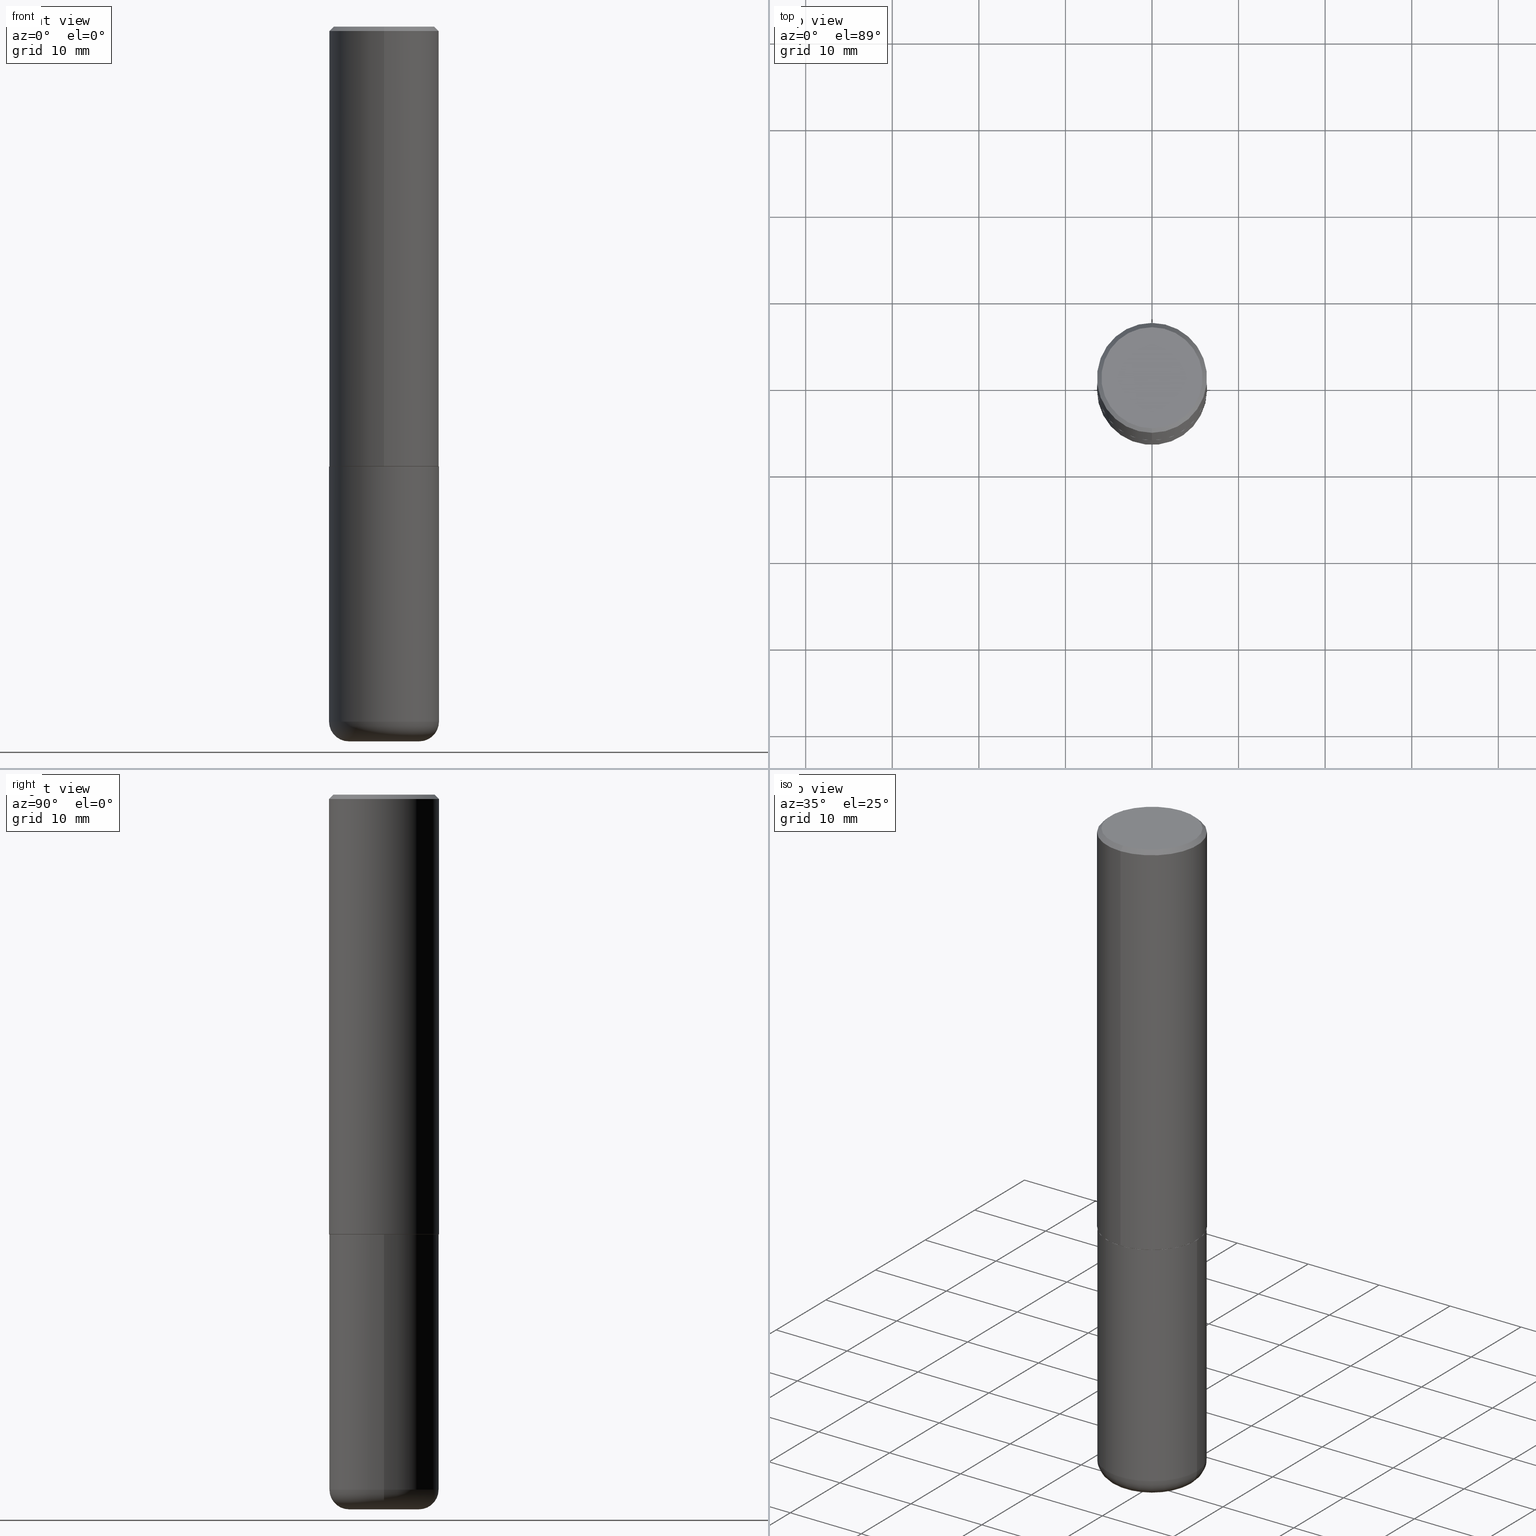
[diagram: canonical four-view strip — front | top / right | iso, engineering-drawing reading convention]
A machine part, canonical four-view strip (front | top / right | iso — engineering-drawing reading convention). The complete STEP part file that produces these views, byte-faithful:
ISO-10303-21;
HEADER;
FILE_DESCRIPTION (( 'STEP AP203' ),
    '1' );
FILE_NAME ('36613.STEP',
    '2024-03-01T16:59:22',
    ( '' ),
    ( '' ),
    'SwSTEP 2.0',
    'SolidWorks 2023',
    '' );
FILE_SCHEMA (( 'CONFIG_CONTROL_DESIGN' ));
ENDSEC;

DATA;
#1 = DIRECTION ( 'NONE',  ( -2.443621766204130648E-29, 3.494126405222933371E-15, 1.000000000000000000 ) ) ;
#2 = DIRECTION ( 'NONE',  ( 1.000000000000000000, -6.982962677686265133E-15, 4.883557194083112340E-29 ) ) ;
#3 = DIRECTION ( 'NONE',  ( -2.443621766204130648E-29, 3.494126405222933371E-15, 1.000000000000000000 ) ) ;
#4 = DIRECTION ( 'NONE',  ( 5.024295867788490741E-15, 0.7071067811866103003, 0.7071067811864847341 ) ) ;
#5 = CARTESIAN_POINT ( 'NONE',  ( -1.738757706743831360E-15, -0.2490000000000069935, -1.999999999999999112 ) ) ;
#6 = ADVANCED_FACE ( 'NONE', ( #378 ), #252, .F. ) ;
#7 = DIRECTION ( 'NONE',  ( 0.000000000000000000, 0.000000000000000000, 1.000000000000000000 ) ) ;
#8 = DIRECTION ( 'NONE',  ( 2.443621766204130368E-29, -3.494126405222933371E-15, -1.000000000000000000 ) ) ;
#9 = DIRECTION ( 'NONE',  ( -6.982962677686266711E-15, -1.000000000000000000, 3.278217592397113101E-15 ) ) ;
#10 = ORIENTED_EDGE ( 'NONE', *, *, #372, .T. ) ;
#11 = CARTESIAN_POINT ( 'NONE',  ( 4.887243532408272857E-31, -6.988252810445882815E-17, -0.02000000000000004552 ) ) ;
#12 = ORIENTED_EDGE ( 'NONE', *, *, #34, .T. ) ;
#13 = ADVANCED_FACE ( 'NONE', ( #343 ), #280, .T. ) ;
#14 = ORIENTED_EDGE ( 'NONE', *, *, #205, .T. ) ;
#15 = CIRCLE ( 'NONE', #310, 0.2500000000000000555 ) ;
#16 = ORGANIZATION ( 'UNSPECIFIED', 'UNSPECIFIED', '' ) ;
#17 = VERTEX_POINT ( 'NONE', #288 ) ;
#18 = ADVANCED_FACE ( 'NONE', ( #347 ), #154, .F. ) ;
#19 = COORDINATED_UNIVERSAL_TIME_OFFSET ( 5, 0, .BEHIND. ) ;
#20 = ORIENTED_EDGE ( 'NONE', *, *, #127, .F. ) ;
#21 = VERTEX_POINT ( 'NONE', #311 ) ;
#22 = CONICAL_SURFACE ( 'NONE', #145, 0.2500000000000000555, 0.7853981633974468357 ) ;
#23 = LOCAL_TIME ( 11, 59, 22.00000000000000000, #115 ) ;
#24 = DIRECTION ( 'NONE',  ( -6.982962677686265133E-15, -1.000000000000000000, 3.291383124896702687E-15 ) ) ;
#25 = ADVANCED_FACE ( 'NONE', ( #26 ), #155, .T. ) ;
#26 = FACE_OUTER_BOUND ( 'NONE', #208, .T. ) ;
#27 = CARTESIAN_POINT ( 'NONE',  ( 0.1600000000000000033, -1.246458837967002615E-14, -3.249999999999999556 ) ) ;
#28 = EDGE_LOOP ( 'NONE', ( #349, #313, #49, #286 ) ) ;
#29 = ADVANCED_FACE ( 'NONE', ( #32 ), #158, .T. ) ;
#30 = AXIS2_PLACEMENT_3D ( 'NONE', #289, #353, #396 ) ;
#31 = CONICAL_SURFACE ( 'NONE', #263, 0.2500000000000000555, 0.7853981633974468357 ) ;
#32 = FACE_OUTER_BOUND ( 'NONE', #46, .T. ) ;
#33 = CARTESIAN_POINT ( 'NONE',  ( -1.745740669421519346E-15, -0.2500000000000072164, -1.998999999999999000 ) ) ;
#34 = EDGE_CURVE ( 'NONE', #246, #299, #266, .T. ) ;
#35 = DIRECTION ( 'NONE',  ( -2.445468806185136597E-29, 3.491481338843145583E-15, 1.000000000000000000 ) ) ;
#36 = CARTESIAN_POINT ( 'NONE',  ( 4.887243532408272857E-31, -6.988252810445882815E-17, -0.02000000000000004552 ) ) ;
#37 = APPROVAL_STATUS ( 'not_yet_approved' ) ;
#38 = CIRCLE ( 'NONE', #387, 0.08999999999999964972 ) ;
#39 = EDGE_CURVE ( 'NONE', #344, #151, #38, .T. ) ;
#40 = DIRECTION ( 'NONE',  ( 7.105427357601001859E-15, 1.000000000000000000, -3.491481338843145583E-15 ) ) ;
#41 = CARTESIAN_POINT ( 'NONE',  ( 4.887243532408260736E-29, -6.988252810445867531E-15, -2.000000000000000000 ) ) ;
#42 = DIRECTION ( 'NONE',  ( 6.982962677686265133E-15, 1.000000000000000000, -3.500180241882336472E-15 ) ) ;
#43 = DIRECTION ( 'NONE',  ( -4.851104656540956386E-15, -0.7071067811865489050, -0.7071067811865461294 ) ) ;
#44 = DIRECTION ( 'NONE',  ( -2.443621766204130368E-29, 3.494126405222933371E-15, 1.000000000000000000 ) ) ;
#45 = DIRECTION ( 'NONE',  ( -2.443621766204130368E-29, 3.494126405222933371E-15, 1.000000000000000000 ) ) ;
#46 = EDGE_LOOP ( 'NONE', ( #250, #410, #91, #411 ) ) ;
#47 = AXIS2_PLACEMENT_3D ( 'NONE', #361, #194, #196 ) ;
#48 = CARTESIAN_POINT ( 'NONE',  ( 1.675911042644704366E-15, 0.2300000000000000377, -7.987721954438231638E-16 ) ) ;
#49 = ORIENTED_EDGE ( 'NONE', *, *, #265, .T. ) ;
#50 = APPROVAL_DATE_TIME ( #117, #209 ) ;
#51 = APPROVAL_DATE_TIME ( #341, #332 ) ;
#52 = AXIS2_PLACEMENT_3D ( 'NONE', #362, #142, #325 ) ;
#53 = AXIS2_PLACEMENT_3D ( 'NONE', #75, #44, #9 ) ;
#54 = SECURITY_CLASSIFICATION_LEVEL ( 'unclassified' ) ;
#55 = ORIENTED_EDGE ( 'NONE', *, *, #170, .T. ) ;
#56 = ORIENTED_EDGE ( 'NONE', *, *, #203, .F. ) ;
#57 = CC_DESIGN_PERSON_AND_ORGANIZATION_ASSIGNMENT ( #185, #150, ( #67 ) ) ;
#58 = PERSON_AND_ORGANIZATION_ROLE ( 'design_supplier' ) ;
#59 = ORIENTED_EDGE ( 'NONE', *, *, #103, .T. ) ;
#60 = CIRCLE ( 'NONE', #294, 0.1600000000000000033 ) ;
#61 = VECTOR ( 'NONE', #273, 39.37007874015748143 ) ;
#62 = ORIENTED_EDGE ( 'NONE', *, *, #276, .F. ) ;
#63 = ORIENTED_EDGE ( 'NONE', *, *, #415, .F. ) ;
#64 = ORIENTED_EDGE ( 'NONE', *, *, #359, .F. ) ;
#65 = AXIS2_PLACEMENT_3D ( 'NONE', #231, #66, #229 ) ;
#66 = DIRECTION ( 'NONE',  ( -2.443621766204130368E-29, 3.494126405222933371E-15, 1.000000000000000000 ) ) ;
#67 = SECURITY_CLASSIFICATION ( '', '', #54 ) ;
#68 = DIRECTION ( 'NONE',  ( -2.443621766204130368E-29, 3.494126405222933371E-15, 1.000000000000000000 ) ) ;
#69 = LINE ( 'NONE', #321, #268 ) ;
#70 = CARTESIAN_POINT ( 'NONE',  ( 1.772804125721499264E-15, 0.2489999999999930047, -2.000000000000000888 ) ) ;
#71 = FACE_OUTER_BOUND ( 'NONE', #368, .T. ) ;
#72 = DIRECTION ( 'NONE',  ( 1.000000000000000000, -6.982962677686273810E-15, 0.000000000000000000 ) ) ;
#73 = DIRECTION ( 'NONE',  ( 1.000000000000000000, -6.982962677686266711E-15, 4.876176775795935793E-29 ) ) ;
#74 = DIRECTION ( 'NONE',  ( 1.000000000000000000, -6.982962677686271444E-15, 0.000000000000000000 ) ) ;
#75 = CARTESIAN_POINT ( 'NONE',  ( 4.884799910642056120E-29, -6.984758684040643933E-15, -1.998999999999999888 ) ) ;
#76 = TOROIDAL_SURFACE ( 'NONE', #163, 0.1600000000000000033, 0.08999999999999967748 ) ;
#77 = DIRECTION ( 'NONE',  ( 2.443621766204130368E-29, -3.494126405222933371E-15, -1.000000000000000000 ) ) ;
#78 = ADVANCED_FACE ( 'NONE', ( #224 ), #198, .T. ) ;
#79 = CARTESIAN_POINT ( 'NONE',  ( -0.2500000000000000000, 1.776356839400250465E-15, -1.229733772563726445E-29 ) ) ;
#80 = PERSON_AND_ORGANIZATION ( #394, #16 ) ;
#81 = FACE_OUTER_BOUND ( 'NONE', #28, .T. ) ;
#82 = AXIS2_PLACEMENT_3D ( 'NONE', #226, #98, #364 ) ;
#83 = DATE_TIME_ROLE ( 'creation_date' ) ;
#84 = ORIENTED_EDGE ( 'NONE', *, *, #87, .T. ) ;
#85 = PRODUCT_DEFINITION ( 'UNKNOWN', '', #114, #391 ) ;
#86 = PERSON_AND_ORGANIZATION ( #394, #16 ) ;
#87 = EDGE_CURVE ( 'NONE', #116, #400, #233, .T. ) ;
#88 = APPROVAL_ROLE ( '' ) ;
#89 = ORIENTED_EDGE ( 'NONE', *, *, #282, .T. ) ;
#90 = PERSON_AND_ORGANIZATION ( #394, #16 ) ;
#91 = ORIENTED_EDGE ( 'NONE', *, *, #306, .F. ) ;
#92 = ORIENTED_EDGE ( 'NONE', *, *, #87, .F. ) ;
#93 = CLOSED_SHELL ( 'NONE', ( #189, #238, #285, #383, #248, #78 ) ) ;
#94 = ORIENTED_EDGE ( 'NONE', *, *, #212, .T. ) ;
#95 = ORIENTED_EDGE ( 'NONE', *, *, #355, .T. ) ;
#96 = ADVANCED_FACE ( 'NONE', ( #130 ), #22, .T. ) ;
#97 = CARTESIAN_POINT ( 'NONE',  ( 1.745740669421567269E-15, 0.2499999999999999722, -0.02000000000000092329 ) ) ;
#98 = DIRECTION ( 'NONE',  ( -2.443621766204130368E-29, 3.494126405222933371E-15, 1.000000000000000000 ) ) ;
#99 = CARTESIAN_POINT ( 'NONE',  ( 0.1600000000000000033, -1.215035505917414131E-14, -3.160000000000000142 ) ) ;
#100 = VECTOR ( 'NONE', #4, 39.37007874015748143 ) ;
#101 = DIRECTION ( 'NONE',  ( -6.982962677686266711E-15, -1.000000000000000000, 3.278217592397113101E-15 ) ) ;
#102 = DIRECTION ( 'NONE',  ( 1.000000000000000000, -6.982962677686265133E-15, 4.883557194083112340E-29 ) ) ;
#103 = EDGE_CURVE ( 'NONE', #256, #149, #69, .T. ) ;
#104 = CARTESIAN_POINT ( 'NONE',  ( 0.2499999999999998612, -1.277882170016590626E-14, -3.160000000000000142 ) ) ;
#105 = CARTESIAN_POINT ( 'NONE',  ( 7.947773620101692818E-29, -1.134731435124022127E-14, -3.249999999999999556 ) ) ;
#106 = DIRECTION ( 'NONE',  ( -2.443621766204130368E-29, 3.494126405222933371E-15, 1.000000000000000000 ) ) ;
#107 = DIRECTION ( 'NONE',  ( -2.443621766204130368E-29, 3.494126405222933371E-15, 1.000000000000000000 ) ) ;
#108 = AXIS2_PLACEMENT_3D ( 'NONE', #36, #367, #141 ) ;
#109 =( LENGTH_UNIT ( ) NAMED_UNIT ( * ) SI_UNIT ( $, .METRE. ) );
#110 = CIRCLE ( 'NONE', #193, 0.2500000000000000555 ) ;
#111 = EDGE_CURVE ( 'NONE', #144, #380, #192, .T. ) ;
#112 = LINE ( 'NONE', #167, #302 ) ;
#113 = PERSON_AND_ORGANIZATION ( #394, #16 ) ;
#114 = PRODUCT_DEFINITION_FORMATION_WITH_SPECIFIED_SOURCE ( 'ANY', '', #334, .NOT_KNOWN. ) ;
#115 = COORDINATED_UNIVERSAL_TIME_OFFSET ( 5, 0, .BEHIND. ) ;
#116 = VERTEX_POINT ( 'NONE', #384 ) ;
#117 = DATE_AND_TIME ( #339, #298 ) ;
#118 = COORDINATED_UNIVERSAL_TIME_OFFSET ( 5, 0, .BEHIND. ) ;
#119 = ORIENTED_EDGE ( 'NONE', *, *, #103, .F. ) ;
#120 = CC_DESIGN_SECURITY_CLASSIFICATION ( #67, ( #114 ) ) ;
#121 = ORIENTED_EDGE ( 'NONE', *, *, #156, .F. ) ;
#122 = ORIENTED_EDGE ( 'NONE', *, *, #247, .F. ) ;
#123 = ORIENTED_EDGE ( 'NONE', *, *, #306, .T. ) ;
#124 = AXIS2_PLACEMENT_3D ( 'NONE', #377, #221, #219 ) ;
#125 = APPROVAL_PERSON_ORGANIZATION ( #86, #209, #88 ) ;
#126 = DIRECTION ( 'NONE',  ( -2.443621766204130368E-29, 3.494126405222933371E-15, 1.000000000000000000 ) ) ;
#127 = EDGE_CURVE ( 'NONE', #246, #330, #314, .T. ) ;
#128 = CYLINDRICAL_SURFACE ( 'NONE', #297, 0.2500000000000000000 ) ;
#129 = TOROIDAL_SURFACE ( 'NONE', #369, 0.1600000000000000033, 0.08999999999999967748 ) ;
#130 = FACE_OUTER_BOUND ( 'NONE', #190, .T. ) ;
#131 = APPLICATION_CONTEXT ( 'configuration controlled 3d designs of mechanical parts and assemblies' ) ;
#132 = DIRECTION ( 'NONE',  ( 1.000000000000000000, -6.982962677686271444E-15, 0.000000000000000000 ) ) ;
#133 = CARTESIAN_POINT ( 'NONE',  ( -1.738757706743831360E-15, -0.2490000000000069935, -1.999999999999999112 ) ) ;
#134 = DIRECTION ( 'NONE',  ( -6.982962677686265133E-15, -1.000000000000000000, 3.500180241882336472E-15 ) ) ;
#135 = MECHANICAL_CONTEXT ( 'NONE', #407, 'mechanical' ) ;
#136 = FACE_OUTER_BOUND ( 'NONE', #143, .T. ) ;
#137 =( NAMED_UNIT ( * ) PLANE_ANGLE_UNIT ( ) SI_UNIT ( $, .RADIAN. ) );
#138 = CIRCLE ( 'NONE', #281, 0.2500000000000002220 ) ;
#139 = CYLINDRICAL_SURFACE ( 'NONE', #315, 0.2500000000000001110 ) ;
#140 = ORIENTED_EDGE ( 'NONE', *, *, #164, .F. ) ;
#141 = DIRECTION ( 'NONE',  ( -6.982962677686265133E-15, -1.000000000000000000, 3.500180241882336472E-15 ) ) ;
#142 = DIRECTION ( 'NONE',  ( -2.445468806185136597E-29, 3.491481338843145583E-15, 1.000000000000000000 ) ) ;
#143 = EDGE_LOOP ( 'NONE', ( #56, #89, #300, #63 ) ) ;
#144 = VERTEX_POINT ( 'NONE', #389 ) ;
#145 = AXIS2_PLACEMENT_3D ( 'NONE', #291, #77, #418 ) ;
#146 = ADVANCED_BREP_SHAPE_REPRESENTATION ( '36613', ( #370, #366, #269 ), #211 ) ;
#147 = CC_DESIGN_PERSON_AND_ORGANIZATION_ASSIGNMENT ( #113, #239, ( #334 ) ) ;
#148 = DATE_AND_TIME ( #183, #23 ) ;
#149 = VERTEX_POINT ( 'NONE', #97 ) ;
#150 = PERSON_AND_ORGANIZATION_ROLE ( 'classification_officer' ) ;
#151 = VERTEX_POINT ( 'NONE', #104 ) ;
#152 = CC_DESIGN_APPROVAL ( #301, ( #85 ) ) ;
#153 = DATE_AND_TIME ( #374, #346 ) ;
#154 = PLANE ( 'NONE',  #322 ) ;
#155 = CYLINDRICAL_SURFACE ( 'NONE', #244, 0.2500000000000001110 ) ;
#156 = EDGE_CURVE ( 'NONE', #149, #21, #179, .T. ) ;
#157 = EDGE_LOOP ( 'NONE', ( #64, #278, #12, #375 ) ) ;
#158 = CONICAL_SURFACE ( 'NONE', #65, 0.2489999999999999991, 0.7853981633975336552 ) ;
#159 = CC_DESIGN_APPROVAL ( #332, ( #114 ) ) ;
#160 = DIRECTION ( 'NONE',  ( -6.982962677686266711E-15, -1.000000000000000000, 3.494126405222933371E-15 ) ) ;
#161 = CARTESIAN_POINT ( 'NONE',  ( 7.727681427545032274E-29, -1.103308103074433958E-14, -3.160000000000000142 ) ) ;
#162 = CARTESIAN_POINT ( 'NONE',  ( 4.887243532408260736E-29, -6.988252810445867531E-15, -2.000000000000000000 ) ) ;
#163 = AXIS2_PLACEMENT_3D ( 'NONE', #161, #267, #102 ) ;
#164 = EDGE_CURVE ( 'NONE', #330, #246, #201, .T. ) ;
#165 = LOCAL_TIME ( 11, 59, 22.00000000000000000, #333 ) ;
#166 = CARTESIAN_POINT ( 'NONE',  ( 0.2500000000000000000, -8.728703347107857054E-15, -2.000000000000000000 ) ) ;
#167 = CARTESIAN_POINT ( 'NONE',  ( 0.2500000000000000000, -1.745740669421566678E-15, 1.219044193948983948E-29 ) ) ;
#168 = FACE_OUTER_BOUND ( 'NONE', #223, .T. ) ;
#169 = FACE_OUTER_BOUND ( 'NONE', #187, .T. ) ;
#170 = EDGE_CURVE ( 'NONE', #400, #116, #328, .T. ) ;
#171 = CARTESIAN_POINT ( 'NONE',  ( 7.727681427545032274E-29, -1.103308103074433958E-14, -3.160000000000000142 ) ) ;
#172 = VECTOR ( 'NONE', #43, 39.37007874015748143 ) ;
#173 = EDGE_LOOP ( 'NONE', ( #275, #279, #240, #304 ) ) ;
#174 = CYLINDRICAL_SURFACE ( 'NONE', #324, 0.2500000000000000000 ) ;
#175 = PERSON_AND_ORGANIZATION_ROLE ( 'creator' ) ;
#176 = EDGE_LOOP ( 'NONE', ( #55, #84 ) ) ;
#177 = ORIENTED_EDGE ( 'NONE', *, *, #282, .F. ) ;
#178 = CIRCLE ( 'NONE', #412, 0.08999999999999964972 ) ;
#179 = CIRCLE ( 'NONE', #108, 0.2500000000000000555 ) ;
#180 = CIRCLE ( 'NONE', #303, 0.1600000000000000033 ) ;
#181 = CC_DESIGN_DATE_AND_TIME_ASSIGNMENT ( #153, #83, ( #85 ) ) ;
#182 = COORDINATED_UNIVERSAL_TIME_OFFSET ( 5, 0, .BEHIND. ) ;
#183 = CALENDAR_DATE ( 2024, 1, 3 ) ;
#184 = ORIENTED_EDGE ( 'NONE', *, *, #205, .F. ) ;
#185 = PERSON_AND_ORGANIZATION ( #394, #16 ) ;
#186 = CARTESIAN_POINT ( 'NONE',  ( 4.887243532408260736E-29, -6.988252810445867531E-15, -2.000000000000000000 ) ) ;
#187 = EDGE_LOOP ( 'NONE', ( #340, #409, #62, #403 ) ) ;
#188 = LINE ( 'NONE', #293, #414 ) ;
#189 = ADVANCED_FACE ( 'NONE', ( #169 ), #128, .T. ) ;
#190 = EDGE_LOOP ( 'NONE', ( #184, #405, #95, #222 ) ) ;
#191 = EDGE_LOOP ( 'NONE', ( #20, #140 ) ) ;
#192 = CIRCLE ( 'NONE', #261, 0.2500000000000000000 ) ;
#193 = AXIS2_PLACEMENT_3D ( 'NONE', #171, #270, #296 ) ;
#194 = DIRECTION ( 'NONE',  ( -2.443621766204130368E-29, 3.494126405222933371E-15, 1.000000000000000000 ) ) ;
#195 = CARTESIAN_POINT ( 'NONE',  ( -0.1600000000000000033, -9.733585082684075330E-15, -3.249999999999999556 ) ) ;
#196 = DIRECTION ( 'NONE',  ( -6.982962677686265922E-15, -1.000000000000000000, 3.494126405222933371E-15 ) ) ;
#197 = PLANE ( 'NONE',  #215 ) ;
#198 = PLANE ( 'NONE',  #30 ) ;
#199 =( NAMED_UNIT ( * ) SI_UNIT ( $, .STERADIAN. ) SOLID_ANGLE_UNIT ( ) );
#200 = DIRECTION ( 'NONE',  ( -2.445468806185136597E-29, 3.491481338843145583E-15, 1.000000000000000000 ) ) ;
#201 = CIRCLE ( 'NONE', #345, 0.2489999999999999991 ) ;
#202 = DIRECTION ( 'NONE',  ( -2.445468806185136597E-29, 3.491481338843145583E-15, 1.000000000000000000 ) ) ;
#203 = EDGE_CURVE ( 'NONE', #217, #17, #178, .T. ) ;
#204 = FACE_OUTER_BOUND ( 'NONE', #413, .T. ) ;
#205 = EDGE_CURVE ( 'NONE', #116, #21, #206, .T. ) ;
#206 = LINE ( 'NONE', #259, #172 ) ;
#207 = CARTESIAN_POINT ( 'NONE',  ( 0.000000000000000000, 0.000000000000000000, 0.000000000000000000 ) ) ;
#208 = EDGE_LOOP ( 'NONE', ( #119, #10, #331, #121 ) ) ;
#209 = APPROVAL ( #245, 'UNSPECIFIED' ) ;
#210 = LINE ( 'NONE', #242, #61 ) ;
#211 =( GEOMETRIC_REPRESENTATION_CONTEXT ( 3 ) GLOBAL_UNCERTAINTY_ASSIGNED_CONTEXT ( ( #342 ) ) GLOBAL_UNIT_ASSIGNED_CONTEXT ( ( #358, #137, #199 ) ) REPRESENTATION_CONTEXT ( 'NONE', 'WORKASPACE' ) );
#212 = EDGE_CURVE ( 'NONE', #21, #149, #15, .T. ) ;
#213 = CALENDAR_DATE ( 2024, 1, 3 ) ;
#214 = ORIENTED_EDGE ( 'NONE', *, *, #276, .T. ) ;
#215 = AXIS2_PLACEMENT_3D ( 'NONE', #320, #319, #316 ) ;
#216 = PERSON_AND_ORGANIZATION ( #394, #16 ) ;
#217 = VERTEX_POINT ( 'NONE', #195 ) ;
#218 = APPROVAL_DATE_TIME ( #148, #301 ) ;
#219 = DIRECTION ( 'NONE',  ( -6.982962677686265922E-15, -1.000000000000000000, 3.494126405222933371E-15 ) ) ;
#220 = CC_DESIGN_PERSON_AND_ORGANIZATION_ASSIGNMENT ( #216, #58, ( #114 ) ) ;
#221 = DIRECTION ( 'NONE',  ( -2.443621766204130088E-29, 3.494126405222933371E-15, 1.000000000000000000 ) ) ;
#222 = ORIENTED_EDGE ( 'NONE', *, *, #156, .T. ) ;
#223 = EDGE_LOOP ( 'NONE', ( #123, #59, #382, #406 ) ) ;
#224 = FACE_OUTER_BOUND ( 'NONE', #274, .T. ) ;
#225 = CLOSED_SHELL ( 'NONE', ( #29, #379, #363, #96, #25, #13, #6, #18 ) ) ;
#226 = CARTESIAN_POINT ( 'NONE',  ( -1.191724463922560587E-46, 1.704042734735616643E-32, 4.876877757451635874E-18 ) ) ;
#227 = AXIS2_PLACEMENT_3D ( 'NONE', #323, #417, #228 ) ;
#228 = DIRECTION ( 'NONE',  ( 1.000000000000000000, -6.982962677686266711E-15, 0.000000000000000000 ) ) ;
#229 = DIRECTION ( 'NONE',  ( -6.982962677686265133E-15, -1.000000000000000000, 3.291383124896702687E-15 ) ) ;
#230 = DIRECTION ( 'NONE',  ( -2.445468806185136877E-29, 3.491481338843145188E-15, 1.000000000000000000 ) ) ;
#231 = CARTESIAN_POINT ( 'NONE',  ( 4.887243532408260736E-29, -6.988252810445867531E-15, -2.000000000000000000 ) ) ;
#232 = DIRECTION ( 'NONE',  ( -6.982962677686266711E-15, -1.000000000000000000, 3.494126405222933371E-15 ) ) ;
#233 = CIRCLE ( 'NONE', #47, 0.2300000000000000377 ) ;
#234 = CIRCLE ( 'NONE', #53, 0.2500000000000002220 ) ;
#235 = DIRECTION ( 'NONE',  ( 1.000000000000000000, 0.000000000000000000, 0.000000000000000000 ) ) ;
#236 = PRODUCT_DEFINITION_SHAPE ( 'NONE', 'NONE',  #85 ) ;
#237 = DIRECTION ( 'NONE',  ( -2.445468806185136877E-29, 3.491481338843145188E-15, 1.000000000000000000 ) ) ;
#238 = ADVANCED_FACE ( 'NONE', ( #262 ), #129, .T. ) ;
#239 = PERSON_AND_ORGANIZATION_ROLE ( 'design_owner' ) ;
#240 = ORIENTED_EDGE ( 'NONE', *, *, #416, .F. ) ;
#241 = CC_DESIGN_DATE_AND_TIME_ASSIGNMENT ( #305, #308, ( #67 ) ) ;
#242 = CARTESIAN_POINT ( 'NONE',  ( 1.745740669421567269E-15, 0.2499999999999999722, -0.02000000000000092329 ) ) ;
#243 = ORIENTED_EDGE ( 'NONE', *, *, #111, .T. ) ;
#244 = AXIS2_PLACEMENT_3D ( 'NONE', #312, #126, #160 ) ;
#245 = APPROVAL_STATUS ( 'not_yet_approved' ) ;
#246 = VERTEX_POINT ( 'NONE', #5 ) ;
#247 = EDGE_CURVE ( 'NONE', #344, #217, #60, .T. ) ;
#248 = ADVANCED_FACE ( 'NONE', ( #136 ), #76, .T. ) ;
#249 = APPROVAL_ROLE ( '' ) ;
#250 = ORIENTED_EDGE ( 'NONE', *, *, #127, .T. ) ;
#251 = CIRCLE ( 'NONE', #227, 0.2500000000000000000 ) ;
#252 = PLANE ( 'NONE',  #124 ) ;
#253 = DIRECTION ( 'NONE',  ( 2.443621766204130088E-29, -3.494126405222933371E-15, -1.000000000000000000 ) ) ;
#254 = DIRECTION ( 'NONE',  ( 6.982962677686265922E-15, 1.000000000000000000, -3.494126405222933371E-15 ) ) ;
#255 = APPROVAL_PERSON_ORGANIZATION ( #90, #332, #249 ) ;
#256 = VERTEX_POINT ( 'NONE', #290 ) ;
#257 = EDGE_CURVE ( 'NONE', #17, #144, #326, .T. ) ;
#258 = CARTESIAN_POINT ( 'NONE',  ( 4.890937612370273194E-29, -6.982962677686291165E-15, -2.000000000000000000 ) ) ;
#259 = CARTESIAN_POINT ( 'NONE',  ( -1.715124499442882496E-15, -0.2500000000000001110, -0.01999999999999917122 ) ) ;
#260 = CARTESIAN_POINT ( 'NONE',  ( 4.884799910642056120E-29, -6.984758684040643933E-15, -1.998999999999999888 ) ) ;
#261 = AXIS2_PLACEMENT_3D ( 'NONE', #258, #392, #350 ) ;
#262 = FACE_OUTER_BOUND ( 'NONE', #173, .T. ) ;
#263 = AXIS2_PLACEMENT_3D ( 'NONE', #11, #8, #42 ) ;
#264 = CARTESIAN_POINT ( 'NONE',  ( 7.947773620101692818E-29, -1.134731435124022127E-14, -3.249999999999999556 ) ) ;
#265 = EDGE_CURVE ( 'NONE', #151, #380, #112, .T. ) ;
#266 = LINE ( 'NONE', #133, #351 ) ;
#267 = DIRECTION ( 'NONE',  ( -2.445468806185136597E-29, 3.491481338843145583E-15, 1.000000000000000000 ) ) ;
#268 = VECTOR ( 'NONE', #3, 39.37007874015748143 ) ;
#269 = AXIS2_PLACEMENT_3D ( 'NONE', #393, #7, #235 ) ;
#270 = DIRECTION ( 'NONE',  ( -2.445468806185136597E-29, 3.491481338843145583E-15, 1.000000000000000000 ) ) ;
#271 = PRODUCT_RELATED_PRODUCT_CATEGORY ( 'detail', '', ( #334 ) ) ;
#272 = LINE ( 'NONE', #329, #100 ) ;
#273 = DIRECTION ( 'NONE',  ( 4.937700262164540154E-15, 0.7071067811865440200, -0.7071067811865510144 ) ) ;
#274 = EDGE_LOOP ( 'NONE', ( #122, #177 ) ) ;
#275 = ORIENTED_EDGE ( 'NONE', *, *, #247, .T. ) ;
#276 = EDGE_CURVE ( 'NONE', #380, #144, #251, .T. ) ;
#277 = SHAPE_DEFINITION_REPRESENTATION ( #236, #146 ) ;
#278 = ORIENTED_EDGE ( 'NONE', *, *, #164, .T. ) ;
#279 = ORIENTED_EDGE ( 'NONE', *, *, #203, .T. ) ;
#280 = CONICAL_SURFACE ( 'NONE', #408, 0.2489999999999999991, 0.7853981633975336552 ) ;
#281 = AXIS2_PLACEMENT_3D ( 'NONE', #260, #386, #101 ) ;
#282 = EDGE_CURVE ( 'NONE', #217, #344, #180, .T. ) ;
#283 = CALENDAR_DATE ( 2024, 1, 3 ) ;
#284 = CARTESIAN_POINT ( 'NONE',  ( 1.606081415867841462E-15, 0.2300000000000000377, -8.012106343225490734E-16 ) ) ;
#285 = ADVANCED_FACE ( 'NONE', ( #71 ), #197, .F. ) ;
#286 = ORIENTED_EDGE ( 'NONE', *, *, #111, .F. ) ;
#287 = DIMENSIONAL_EXPONENTS ( 1.000000000000000000, 0.000000000000000000, 0.000000000000000000, 0.000000000000000000, 0.000000000000000000, 0.000000000000000000, 0.000000000000000000 ) ;
#288 = CARTESIAN_POINT ( 'NONE',  ( -0.2499999999999998612, -9.256724191344090697E-15, -3.160000000000000142 ) ) ;
#289 = CARTESIAN_POINT ( 'NONE',  ( 1.569755810607999452E-28, -2.491818769791448206E-16, -3.249999999999999556 ) ) ;
#290 = CARTESIAN_POINT ( 'NONE',  ( 1.776356839400276103E-15, 0.2499999999999932276, -1.999000000000000776 ) ) ;
#291 = CARTESIAN_POINT ( 'NONE',  ( 4.887243532408272857E-31, -6.988252810445882815E-17, -0.02000000000000004552 ) ) ;
#292 = CARTESIAN_POINT ( 'NONE',  ( -0.1600000000000000033, -9.896212653528179854E-15, -3.160000000000000142 ) ) ;
#293 = CARTESIAN_POINT ( 'NONE',  ( -1.745740669421567467E-15, -0.2500000000000001110, 8.735316013057337372E-16 ) ) ;
#294 = AXIS2_PLACEMENT_3D ( 'NONE', #105, #200, #132 ) ;
#295 = DIRECTION ( 'NONE',  ( -2.445468806185136597E-29, 3.491481338843145583E-15, 1.000000000000000000 ) ) ;
#296 = DIRECTION ( 'NONE',  ( 1.000000000000000000, -6.982962677686269077E-15, 0.000000000000000000 ) ) ;
#297 = AXIS2_PLACEMENT_3D ( 'NONE', #390, #202, #388 ) ;
#298 = LOCAL_TIME ( 11, 59, 22.00000000000000000, #19 ) ;
#299 = VERTEX_POINT ( 'NONE', #33 ) ;
#300 = ORIENTED_EDGE ( 'NONE', *, *, #39, .T. ) ;
#301 = APPROVAL ( #37, 'UNSPECIFIED' ) ;
#302 = VECTOR ( 'NONE', #237, 39.37007874015748143 ) ;
#303 = AXIS2_PLACEMENT_3D ( 'NONE', #264, #354, #74 ) ;
#304 = ORIENTED_EDGE ( 'NONE', *, *, #39, .F. ) ;
#305 = DATE_AND_TIME ( #213, #360 ) ;
#306 = EDGE_CURVE ( 'NONE', #299, #256, #138, .T. ) ;
#307 = ORIENTED_EDGE ( 'NONE', *, *, #355, .F. ) ;
#308 = DATE_TIME_ROLE ( 'classification_date' ) ;
#309 = DIRECTION ( 'NONE',  ( -2.443621766204130368E-29, 3.494126405222933371E-15, 1.000000000000000000 ) ) ;
#310 = AXIS2_PLACEMENT_3D ( 'NONE', #352, #68, #134 ) ;
#311 = CARTESIAN_POINT ( 'NONE',  ( -1.715124499442882496E-15, -0.2500000000000001110, -0.01999999999999917122 ) ) ;
#312 = CARTESIAN_POINT ( 'NONE',  ( 0.000000000000000000, 0.000000000000000000, 0.000000000000000000 ) ) ;
#313 = ORIENTED_EDGE ( 'NONE', *, *, #415, .T. ) ;
#314 = CIRCLE ( 'NONE', #381, 0.2489999999999999991 ) ;
#315 = AXIS2_PLACEMENT_3D ( 'NONE', #207, #107, #232 ) ;
#316 = DIRECTION ( 'NONE',  ( -1.000000000000000000, 6.982962677686265922E-15, -4.876176775795935793E-29 ) ) ;
#317 = CARTESIAN_POINT ( 'NONE',  ( 7.727681427545032274E-29, -1.103308103074433958E-14, -3.160000000000000142 ) ) ;
#318 = DIRECTION ( 'NONE',  ( -6.982962677686265133E-15, -1.000000000000000000, 3.291383124896702687E-15 ) ) ;
#319 = DIRECTION ( 'NONE',  ( 2.438088387897960049E-29, -3.491481338843145188E-15, -1.000000000000000000 ) ) ;
#320 = CARTESIAN_POINT ( 'NONE',  ( 4.890937612370273194E-29, -6.982962677686291165E-15, -2.000000000000000000 ) ) ;
#321 = CARTESIAN_POINT ( 'NONE',  ( 1.776356839400251254E-15, 0.2500000000000001110, -8.735316013057337372E-16 ) ) ;
#322 = AXIS2_PLACEMENT_3D ( 'NONE', #284, #253, #254 ) ;
#323 = CARTESIAN_POINT ( 'NONE',  ( 4.890937612370273194E-29, -6.982962677686291165E-15, -2.000000000000000000 ) ) ;
#324 = AXIS2_PLACEMENT_3D ( 'NONE', #397, #295, #73 ) ;
#325 = DIRECTION ( 'NONE',  ( 1.000000000000000000, -6.982962677686269077E-15, 0.000000000000000000 ) ) ;
#326 = LINE ( 'NONE', #79, #401 ) ;
#327 = LENGTH_MEASURE_WITH_UNIT ( LENGTH_MEASURE( 0.02539999999999999897 ), #109 );
#328 = CIRCLE ( 'NONE', #82, 0.2300000000000000377 ) ;
#329 = CARTESIAN_POINT ( 'NONE',  ( 1.769251412042697971E-15, 0.2489999999999930047, -2.000000000000000888 ) ) ;
#330 = VERTEX_POINT ( 'NONE', #70 ) ;
#331 = ORIENTED_EDGE ( 'NONE', *, *, #336, .T. ) ;
#332 = APPROVAL ( #376, 'UNSPECIFIED' ) ;
#333 = COORDINATED_UNIVERSAL_TIME_OFFSET ( 5, 0, .BEHIND. ) ;
#334 = PRODUCT ( '36613', '36613', '', ( #135 ) ) ;
#335 = APPROVAL_PERSON_ORGANIZATION ( #80, #301, #402 ) ;
#336 = EDGE_CURVE ( 'NONE', #299, #21, #188, .T. ) ;
#337 = PERSON_AND_ORGANIZATION ( #394, #16 ) ;
#338 = CC_DESIGN_PERSON_AND_ORGANIZATION_ASSIGNMENT ( #404, #175, ( #114 ) ) ;
#339 = CALENDAR_DATE ( 2024, 1, 3 ) ;
#340 = ORIENTED_EDGE ( 'NONE', *, *, #416, .T. ) ;
#341 = DATE_AND_TIME ( #283, #165 ) ;
#342 = UNCERTAINTY_MEASURE_WITH_UNIT (LENGTH_MEASURE( 1.000000000000000082E-05 ), #358, 'distance_accuracy_value', 'NONE');
#343 = FACE_OUTER_BOUND ( 'NONE', #157, .T. ) ;
#344 = VERTEX_POINT ( 'NONE', #27 ) ;
#345 = AXIS2_PLACEMENT_3D ( 'NONE', #162, #45, #395 ) ;
#346 = LOCAL_TIME ( 11, 59, 22.00000000000000000, #118 ) ;
#347 = FACE_OUTER_BOUND ( 'NONE', #176, .T. ) ;
#348 = CC_DESIGN_PERSON_AND_ORGANIZATION_ASSIGNMENT ( #337, #371, ( #85 ) ) ;
#349 = ORIENTED_EDGE ( 'NONE', *, *, #257, .F. ) ;
#350 = DIRECTION ( 'NONE',  ( 1.000000000000000000, -6.982962677686266711E-15, 0.000000000000000000 ) ) ;
#351 = VECTOR ( 'NONE', #385, 39.37007874015748143 ) ;
#352 = CARTESIAN_POINT ( 'NONE',  ( 4.887243532408272857E-31, -6.988252810445882815E-17, -0.02000000000000004552 ) ) ;
#353 = DIRECTION ( 'NONE',  ( 2.438088387897960049E-29, -3.491481338843145188E-15, -1.000000000000000000 ) ) ;
#354 = DIRECTION ( 'NONE',  ( -2.445468806185136597E-29, 3.491481338843145583E-15, 1.000000000000000000 ) ) ;
#355 = EDGE_CURVE ( 'NONE', #400, #149, #210, .T. ) ;
#356 = DIRECTION ( 'NONE',  ( -1.000000000000000000, 7.105427357600996337E-15, 0.000000000000000000 ) ) ;
#357 = DIRECTION ( 'NONE',  ( -6.982962677686266711E-15, -1.000000000000000000, 3.491481338843145583E-15 ) ) ;
#358 =( CONVERSION_BASED_UNIT ( 'INCH', #327 ) LENGTH_UNIT ( ) NAMED_UNIT ( #287 ) );
#359 = EDGE_CURVE ( 'NONE', #330, #256, #272, .T. ) ;
#360 = LOCAL_TIME ( 11, 59, 22.00000000000000000, #182 ) ;
#361 = CARTESIAN_POINT ( 'NONE',  ( -1.191724463922560587E-46, 1.704042734735616643E-32, 4.876877757451635874E-18 ) ) ;
#362 = CARTESIAN_POINT ( 'NONE',  ( 7.727681427545032274E-29, -1.103308103074433958E-14, -3.160000000000000142 ) ) ;
#363 = ADVANCED_FACE ( 'NONE', ( #204 ), #31, .T. ) ;
#364 = DIRECTION ( 'NONE',  ( -6.982962677686265922E-15, -1.000000000000000000, 3.494126405222933371E-15 ) ) ;
#365 = APPLICATION_PROTOCOL_DEFINITION ( 'international standard', 'config_control_design', 1994, #131 ) ;
#366 = MANIFOLD_SOLID_BREP ( 'Body-Move/Copy2[2]', #225 ) ;
#367 = DIRECTION ( 'NONE',  ( -2.443621766204130368E-29, 3.494126405222933371E-15, 1.000000000000000000 ) ) ;
#368 = EDGE_LOOP ( 'NONE', ( #214, #243 ) ) ;
#369 = AXIS2_PLACEMENT_3D ( 'NONE', #317, #35, #2 ) ;
#370 = MANIFOLD_SOLID_BREP ( 'Body-Move/Copy2[1]', #93 ) ;
#371 = PERSON_AND_ORGANIZATION_ROLE ( 'creator' ) ;
#372 = EDGE_CURVE ( 'NONE', #256, #299, #234, .T. ) ;
#373 = CIRCLE ( 'NONE', #52, 0.2500000000000000555 ) ;
#374 = CALENDAR_DATE ( 2024, 1, 3 ) ;
#375 = ORIENTED_EDGE ( 'NONE', *, *, #372, .F. ) ;
#376 = APPROVAL_STATUS ( 'not_yet_approved' ) ;
#377 = CARTESIAN_POINT ( 'NONE',  ( 4.887243532408260736E-29, -6.988252810445867531E-15, -2.000000000000000000 ) ) ;
#378 = FACE_OUTER_BOUND ( 'NONE', #191, .T. ) ;
#379 = ADVANCED_FACE ( 'NONE', ( #168 ), #139, .T. ) ;
#380 = VERTEX_POINT ( 'NONE', #166 ) ;
#381 = AXIS2_PLACEMENT_3D ( 'NONE', #41, #106, #318 ) ;
#382 = ORIENTED_EDGE ( 'NONE', *, *, #212, .F. ) ;
#383 = ADVANCED_FACE ( 'NONE', ( #81 ), #174, .T. ) ;
#384 = CARTESIAN_POINT ( 'NONE',  ( -1.646519519465167559E-15, -0.2300000000000000377, 8.085259509587265064E-16 ) ) ;
#385 = DIRECTION ( 'NONE',  ( -4.937700262164969294E-15, -0.7071067811866054154, 0.7071067811864896191 ) ) ;
#386 = DIRECTION ( 'NONE',  ( -2.443621766204130368E-29, 3.494126405222933371E-15, 1.000000000000000000 ) ) ;
#387 = AXIS2_PLACEMENT_3D ( 'NONE', #99, #357, #72 ) ;
#388 = DIRECTION ( 'NONE',  ( 1.000000000000000000, -6.982962677686266711E-15, 4.876176775795935793E-29 ) ) ;
#389 = CARTESIAN_POINT ( 'NONE',  ( -0.2500000000000000000, -7.231665014815064515E-15, -2.000000000000000000 ) ) ;
#390 = CARTESIAN_POINT ( 'NONE',  ( 0.000000000000000000, 0.000000000000000000, 0.000000000000000000 ) ) ;
#391 = DESIGN_CONTEXT ( 'detailed design', #131, 'design' ) ;
#392 = DIRECTION ( 'NONE',  ( -2.445468806185136597E-29, 3.491481338843145583E-15, 1.000000000000000000 ) ) ;
#393 = CARTESIAN_POINT ( 'NONE',  ( 0.000000000000000000, 0.000000000000000000, 0.000000000000000000 ) ) ;
#394 = PERSON ( 'UNSPECIFIED', 'UNSPECIFIED', 'UNSPECIFIED', ('UNSPECIFIED'), ('UNSPECIFIED'), ('UNSPECIFIED') ) ;
#395 = DIRECTION ( 'NONE',  ( -6.982962677686265133E-15, -1.000000000000000000, 3.291383124896702687E-15 ) ) ;
#396 = DIRECTION ( 'NONE',  ( -1.000000000000000000, 6.982962677686265922E-15, -4.876176775795935793E-29 ) ) ;
#397 = CARTESIAN_POINT ( 'NONE',  ( 0.000000000000000000, 0.000000000000000000, 0.000000000000000000 ) ) ;
#398 = CC_DESIGN_APPROVAL ( #209, ( #67 ) ) ;
#399 = APPLICATION_PROTOCOL_DEFINITION ( 'international standard', 'config_control_design', 1994, #407 ) ;
#400 = VERTEX_POINT ( 'NONE', #48 ) ;
#401 = VECTOR ( 'NONE', #230, 39.37007874015748143 ) ;
#402 = APPROVAL_ROLE ( '' ) ;
#403 = ORIENTED_EDGE ( 'NONE', *, *, #265, .F. ) ;
#404 = PERSON_AND_ORGANIZATION ( #394, #16 ) ;
#405 = ORIENTED_EDGE ( 'NONE', *, *, #170, .F. ) ;
#406 = ORIENTED_EDGE ( 'NONE', *, *, #336, .F. ) ;
#407 = APPLICATION_CONTEXT ( 'configuration controlled 3d designs of mechanical parts and assemblies' ) ;
#408 = AXIS2_PLACEMENT_3D ( 'NONE', #186, #309, #24 ) ;
#409 = ORIENTED_EDGE ( 'NONE', *, *, #257, .T. ) ;
#410 = ORIENTED_EDGE ( 'NONE', *, *, #359, .T. ) ;
#411 = ORIENTED_EDGE ( 'NONE', *, *, #34, .F. ) ;
#412 = AXIS2_PLACEMENT_3D ( 'NONE', #292, #40, #356 ) ;
#413 = EDGE_LOOP ( 'NONE', ( #92, #14, #94, #307 ) ) ;
#414 = VECTOR ( 'NONE', #1, 39.37007874015748143 ) ;
#415 = EDGE_CURVE ( 'NONE', #17, #151, #373, .T. ) ;
#416 = EDGE_CURVE ( 'NONE', #151, #17, #110, .T. ) ;
#417 = DIRECTION ( 'NONE',  ( -2.445468806185136597E-29, 3.491481338843145583E-15, 1.000000000000000000 ) ) ;
#418 = DIRECTION ( 'NONE',  ( 6.982962677686265133E-15, 1.000000000000000000, -3.500180241882336472E-15 ) ) ;
ENDSEC;
END-ISO-10303-21;
